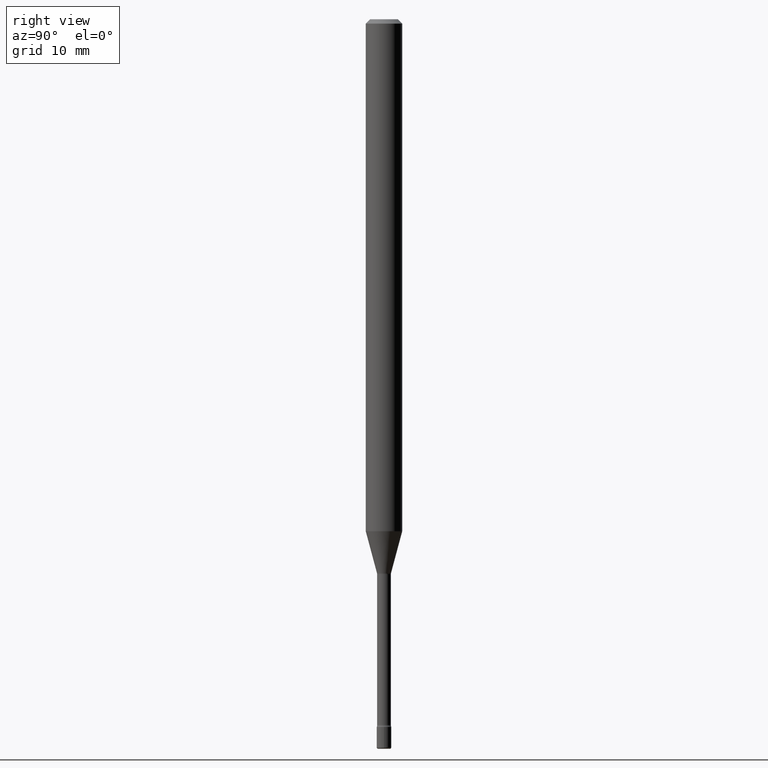
[diagram: clean part render]
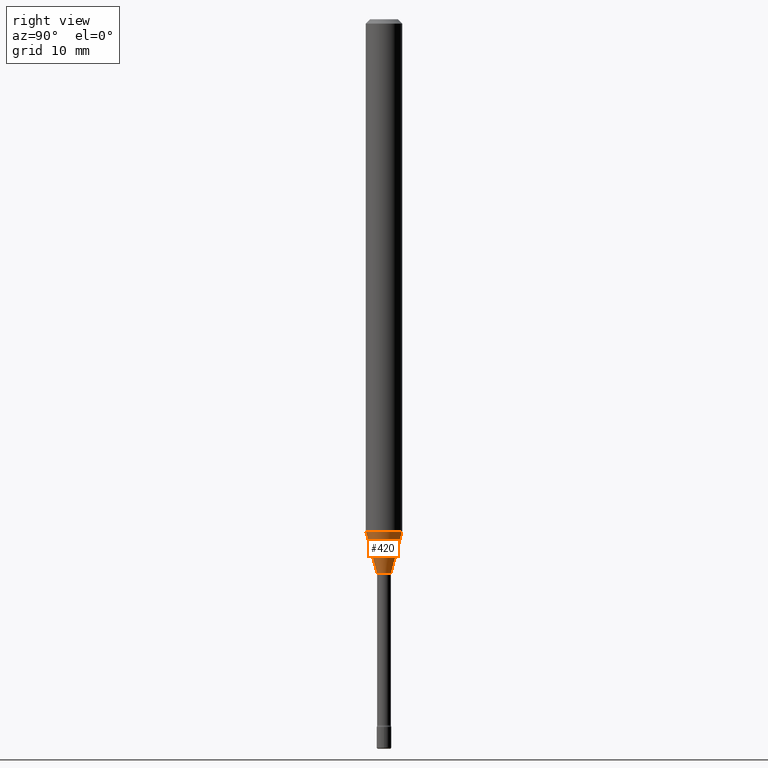
[diagram: same view with one face highlighted and labeled with its STEP entity id]
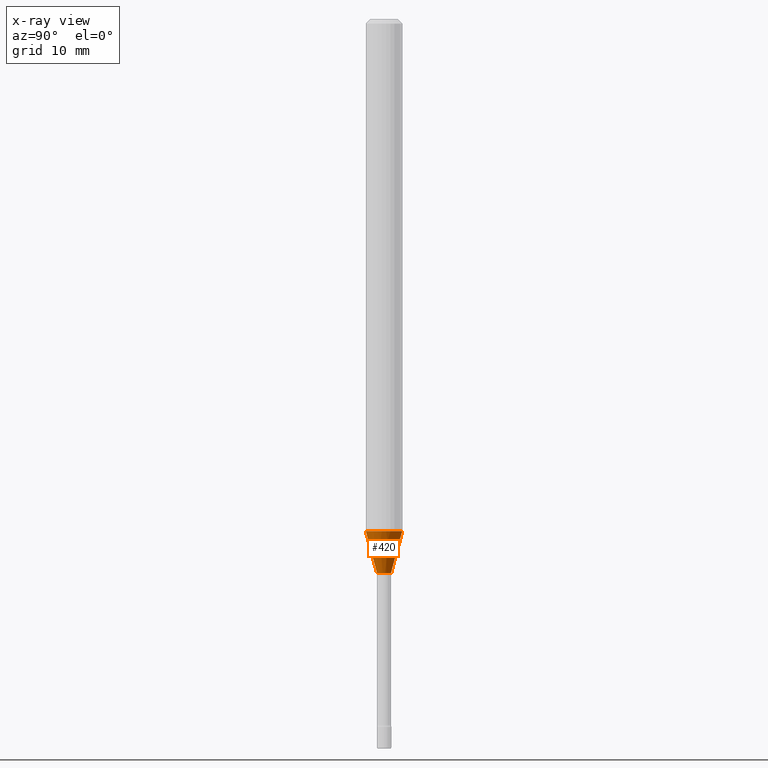
[diagram: x-ray of the same camera — body ghosted, the highlighted face saturated]
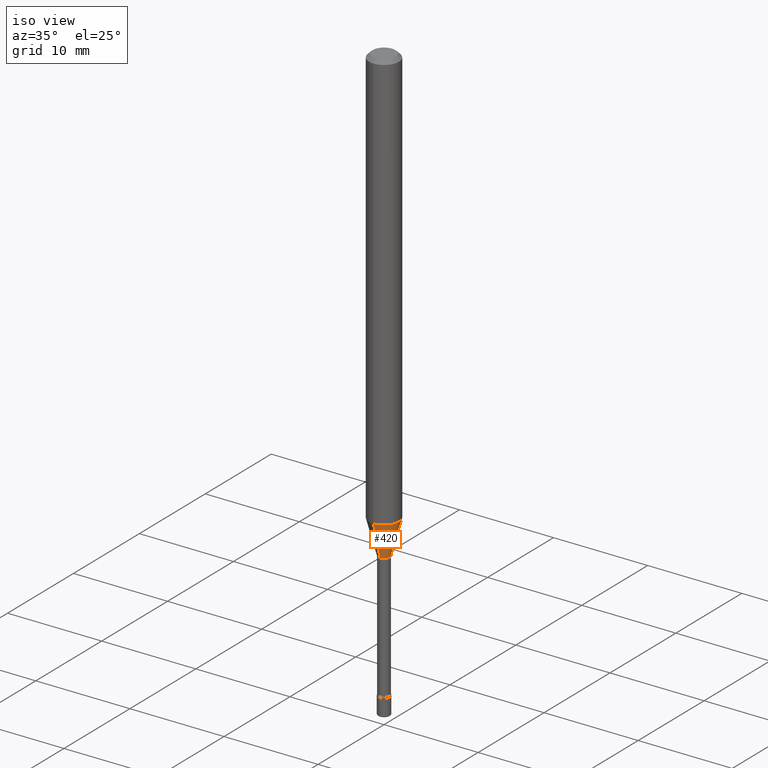
[diagram: same view with one face highlighted and labeled with its STEP entity id]
A machine part, right view. The second image highlights one B-rep face of the part: STEP entity #420.
The next image is the same camera in x-ray: the body ghosted, the highlighted face saturated — about 0% of this face is hidden behind the body in this view.
A second angle (iso view) of the same face is appended — the face is thin or edge-on in the first view.
In plain terms, the highlighted conical surface has half-angle 15 deg.
Its self-contained STEP definition (entity closure, byte-faithful):
#17 = VERTEX_POINT ( 'NONE', #524 ) ;
#23 = VERTEX_POINT ( 'NONE', #123 ) ;
#34 = DIRECTION ( 'NONE',  ( -2.445458409573931525E-29, 3.491496227382129512E-15, 1.000000000000000000 ) ) ;
#52 = EDGE_CURVE ( 'NONE', #472, #23, #210, .T. ) ;
#93 = AXIS2_PLACEMENT_3D ( 'NONE', #338, #500, #451 ) ;
#101 = DIRECTION ( 'NONE',  ( -6.982962677686265922E-15, -1.000000000000000000, 4.370956789862821150E-15 ) ) ;
#102 = ORIENTED_EDGE ( 'NONE', *, *, #217, .T. ) ;
#105 = CARTESIAN_POINT ( 'NONE',  ( -1.676687031750273969E-16, -0.02401111260567060854, -1.898092501787273401 ) ) ;
#109 = CIRCLE ( 'NONE', #136, 0.06250000000000000000 ) ;
#115 = ORIENTED_EDGE ( 'NONE', *, *, #437, .F. ) ;
#123 = CARTESIAN_POINT ( 'NONE',  ( 3.073492131224375317E-16, 0.02401111260565734831, -1.898092501787273401 ) ) ;
#136 = AXIS2_PLACEMENT_3D ( 'NONE', #511, #547, #101 ) ;
#141 = VERTEX_POINT ( 'NONE', #316 ) ;
#162 = EDGE_CURVE ( 'NONE', #472, #17, #568, .T. ) ;
#172 = CARTESIAN_POINT ( 'NONE',  ( 4.641706270644910592E-29, -6.627182809212572482E-15, -1.898092501787273401 ) ) ;
#199 = AXIS2_PLACEMENT_3D ( 'NONE', #172, #34, #247 ) ;
#210 = CIRCLE ( 'NONE', #199, 0.02401111260566398189 ) ;
#217 = EDGE_CURVE ( 'NONE', #23, #141, #498, .T. ) ;
#240 = DIRECTION ( 'NONE',  ( 1.839019923739601104E-15, 0.2588190451025250693, 0.9659258262890670910 ) ) ;
#247 = DIRECTION ( 'NONE',  ( -6.982962677686265133E-15, -1.000000000000000000, 0.000000000000000000 ) ) ;
#292 = CARTESIAN_POINT ( 'NONE',  ( 1.706092163947695036E-16, 0.02401111260565735178, -1.898092501787273401 ) ) ;
#299 = CARTESIAN_POINT ( 'NONE',  ( -1.676687031750273969E-16, -0.02401111260567060854, -1.898092501787273401 ) ) ;
#316 = CARTESIAN_POINT ( 'NONE',  ( 4.440892098501052147E-16, 0.06249999999999384520, -1.754450018504814857 ) ) ;
#319 = ORIENTED_EDGE ( 'NONE', *, *, #162, .F. ) ;
#338 = CARTESIAN_POINT ( 'NONE',  ( 4.641706270644910592E-29, -6.627182809212572482E-15, -1.898092501787273401 ) ) ;
#400 = VECTOR ( 'NONE', #478, 39.37007874015748143 ) ;
#401 = CONICAL_SURFACE ( 'NONE', #93, 0.02401111260566398189, 0.2617993877991502960 ) ;
#420 = ADVANCED_FACE ( 'NONE', ( #552 ), #401, .T. ) ;
#423 = VECTOR ( 'NONE', #240, 39.37007874015748143 ) ;
#437 = EDGE_CURVE ( 'NONE', #17, #141, #109, .T. ) ;
#451 = DIRECTION ( 'NONE',  ( -6.982962677686265133E-15, -1.000000000000000000, 0.000000000000000000 ) ) ;
#452 = EDGE_LOOP ( 'NONE', ( #551, #102, #115, #319 ) ) ;
#472 = VERTEX_POINT ( 'NONE', #105 ) ;
#478 = DIRECTION ( 'NONE',  ( -1.807323732225330928E-15, -0.2588190451025182970, 0.9659258262890689783 ) ) ;
#498 = LINE ( 'NONE', #292, #423 ) ;
#500 = DIRECTION ( 'NONE',  ( -2.445458409573931525E-29, 3.491496227382129512E-15, 1.000000000000000000 ) ) ;
#511 = CARTESIAN_POINT ( 'NONE',  ( 4.290434551929739000E-29, -6.125655620740067716E-15, -1.754450018504814635 ) ) ;
#524 = CARTESIAN_POINT ( 'NONE',  ( -4.364351673553489230E-16, -0.06250000000000614786, -1.754450018504814190 ) ) ;
#547 = DIRECTION ( 'NONE',  ( -2.445458409573931525E-29, 3.491496227382129512E-15, 1.000000000000000000 ) ) ;
#551 = ORIENTED_EDGE ( 'NONE', *, *, #52, .T. ) ;
#552 = FACE_OUTER_BOUND ( 'NONE', #452, .T. ) ;
#568 = LINE ( 'NONE', #299, #400 ) ;